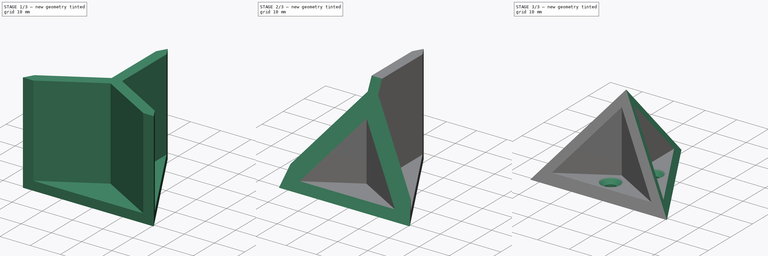
[diagram: build sequence overview — one tinted view per stage of 3, left to right]
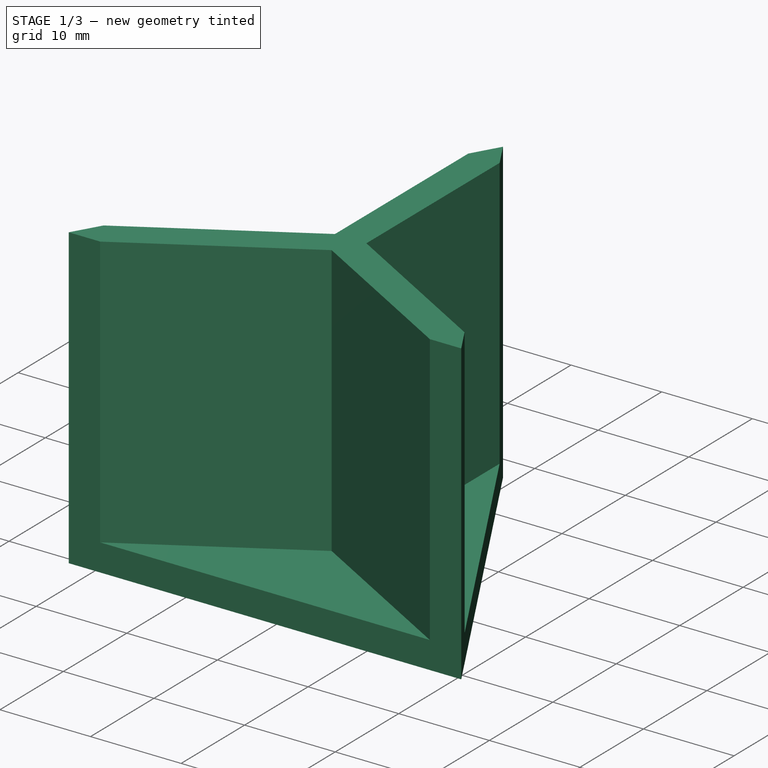
[diagram: stage 1 of 3 — iso view after this stage's code; geometry added in this stage tinted green]
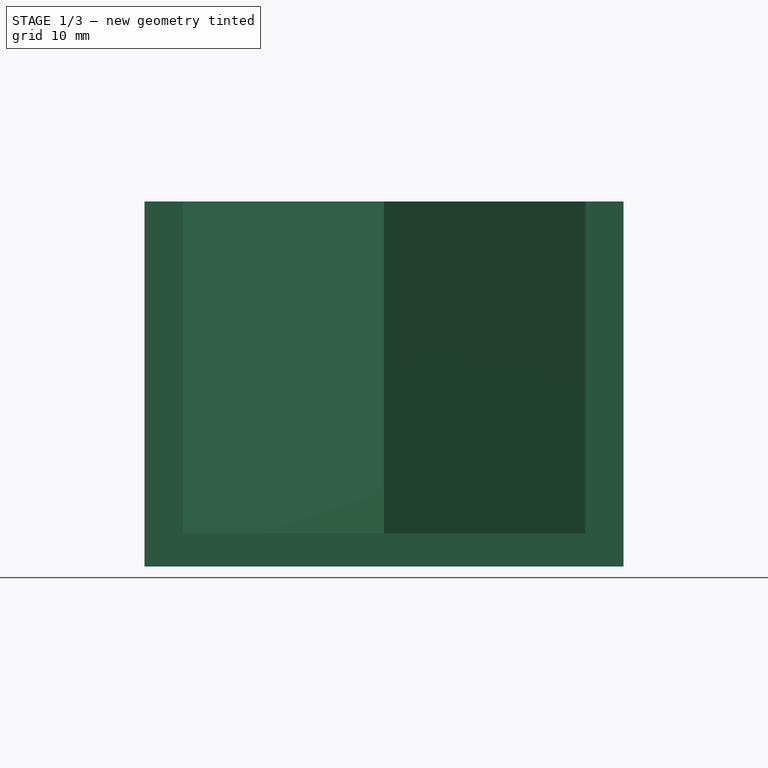
[diagram: stage 1 of 3 — front view after this stage's code; geometry added in this stage tinted green]
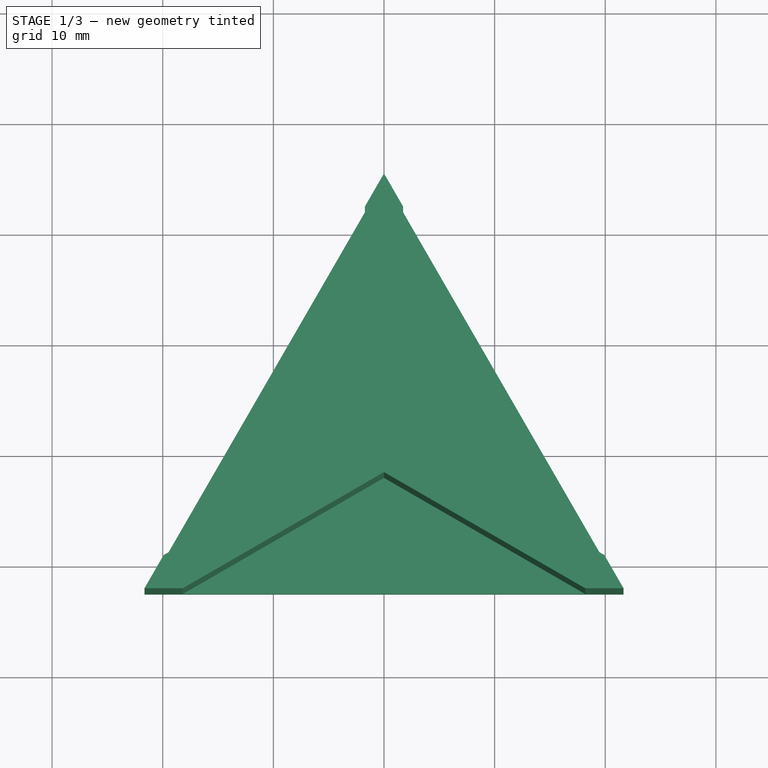
[diagram: stage 1 of 3 — top view after this stage's code; geometry added in this stage tinted green]
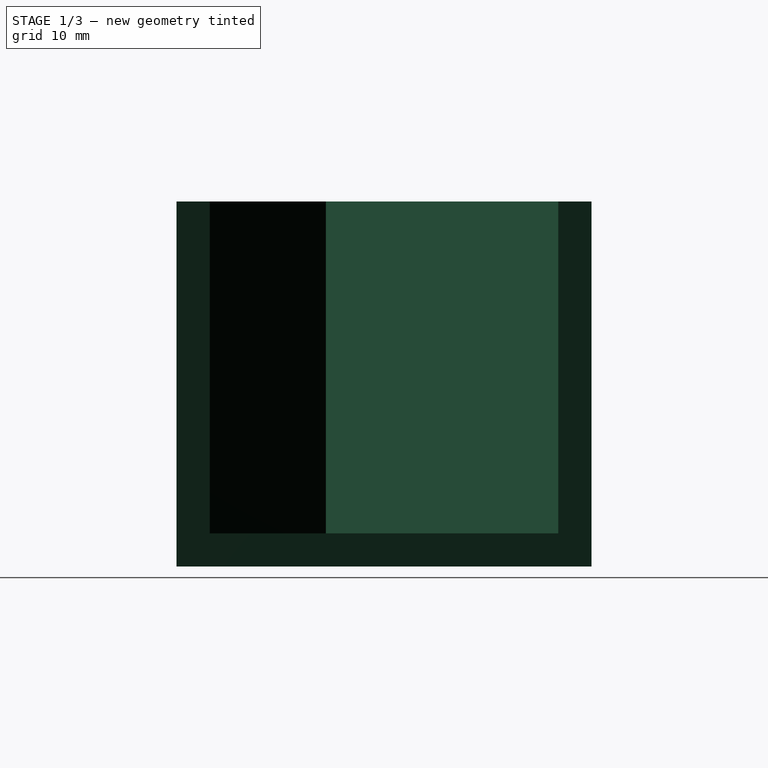
[diagram: stage 1 of 3 — right view after this stage's code; geometry added in this stage tinted green]
FCSTD DOCUMENT  (FreeCAD 0.20R25065 (Git))
Label: SupportCone
License: All rights reserved
LicenseURL: http://en.wikipedia.org/wiki/All_rights_reserved
objects: Sketcher::SketchObject×4, PartDesign::Pad×2, PartDesign::Pocket×1, PartDesign::PolarPattern×1, PartDesign::Hole×1, PartDesign::Body×1
note: 14 computed .brp shape members not serialized (recipe doc carries the construction recipe); baked Part::Feature solids carry a one-line shape summary decoded from their .brp

FEATURE [Sketcher::SketchObject] Sketch
  FullyConstrained = true
  MapMode = 5
  Support = -> [XY_Plane]
  sketch-geometry (4):
    g0: LineSegment StartX=0 StartY=25 StartZ=0 EndX=21.6506 EndY=-12.5 EndZ=0
    g1: LineSegment StartX=0 StartY=25 StartZ=0 EndX=-21.6506 EndY=-12.5 EndZ=0
    g2: LineSegment StartX=-21.6506 StartY=-12.5 StartZ=0 EndX=21.6506 EndY=-12.5 EndZ=0
    g3: Circle CenterX=0 CenterY=0 CenterZ=0 NormalX=0 NormalY=0 NormalZ=1 AngleXU=0 Radius=25
  constraints (11):
    c: PointOnObject(g0,g-2)
    c: Coincident(g1,g0)
    c: Coincident(g2,g1)
    c: Coincident(g2,g0)
    c: Horizontal(g2)
    c: Coincident(g3,g-1)
    c: PointOnObject(g0,g3)
    c: PointOnObject(g0,g3)
    c: PointOnObject(g1,g3)
    c: Equal(g0,g2)
    c: Diameter(g3) = 50
FEATURE [PartDesign::Pad] Pad  label="Base"
  Direction = (0,0,1)
  Length = 3
  Length2 = 100
  Profile = -> Sketch
  Type = 0
FEATURE [Sketcher::SketchObject] Sketch001
  ExternalGeometry = -> [Pad]
  FullyConstrained = true
  MapMode = 5
  Placement = pos=(0,0,3) rot=(0,0,1;0rad)
  Support = -> [Pad]
  sketch-geometry (13):
    g0: LineSegment StartX=-18.1865 StartY=-12.5 StartZ=0 EndX=0 EndY=-2 EndZ=0
    g1: LineSegment StartX=0 StartY=-2 StartZ=0 EndX=18.1865 EndY=-12.5 EndZ=0
    g2: LineSegment StartX=-19.9186 StartY=-9.5 StartZ=0 EndX=-1.73205 EndY=1 EndZ=0
    g3: LineSegment StartX=-1.73205 StartY=1 StartZ=0 EndX=-1.73205 EndY=22 EndZ=0
    g4: LineSegment StartX=1.73205 StartY=22 StartZ=0 EndX=1.73205 EndY=1 EndZ=0
    g5: LineSegment StartX=1.73205 StartY=1 StartZ=0 EndX=19.9186 EndY=-9.5 EndZ=0
    g6: LineSegment StartX=1.73205 StartY=22 StartZ=0 EndX=-1.1e-15 EndY=25 EndZ=0
    g7: LineSegment StartX=-1.73205 StartY=22 StartZ=0 EndX=-1.1e-15 EndY=25 EndZ=0
    g8: LineSegment StartX=-19.9186 StartY=-9.5 StartZ=0 EndX=-21.6506 EndY=-12.5 EndZ=0
    g9: LineSegment StartX=-21.6506 StartY=-12.5 StartZ=0 EndX=-18.1865 EndY=-12.5 EndZ=0
    g10: LineSegment StartX=18.1865 StartY=-12.5 StartZ=0 EndX=21.6506 EndY=-12.5 EndZ=0
    g11: LineSegment StartX=21.6506 StartY=-12.5 StartZ=0 EndX=19.9186 EndY=-9.5 EndZ=0
    g12: Circle CenterX=0 CenterY=0 CenterZ=0 NormalX=0 NormalY=0 NormalZ=1 AngleXU=0 Radius=2
  constraints (34):
    c: PointOnObject(g0,g-5)
    c: PointOnObject(g0,g-2)
    c: Coincident(g1,g0)
    c: PointOnObject(g1,g-5)
    c: PointOnObject(g2,g-4)
    c: Coincident(g3,g2)
    c: PointOnObject(g3,g-4)
    c: PointOnObject(g4,g-3)
    c: Vertical(g4)
    c: Coincident(g5,g4)
    c: PointOnObject(g5,g-3)
    c: Coincident(g6,g4)
    c: Coincident(g6,g-4)
    c: Coincident(g7,g3)
    c: Coincident(g7,g6)
    c: Coincident(g8,g2)
    c: Coincident(g8,g-5)
    c: Coincident(g9,g8)
    c: Coincident(g9,g0)
    c: Coincident(g10,g1)
    c: Coincident(g10,g-5)
    c: Coincident(g11,g10)
    c: Coincident(g11,g5)
    c: Coincident(g12,g-1)
    c: PointOnObject(g0,g12)
    c: PointOnObject(g4,g12)
    c: Parallel(g1,g5)
    c: Equal(g0,g2)
    c: Equal(g4,g3)
    c: Symmetric(g4,g2,g-2)
    c: Diameter(g12) = 4
    c: Parallel(g0,g2)
    c: Equal(g11,g10)
    c: Equal(g9,g8)
FEATURE [PartDesign::Pad] Pad001  label="Renfort"
  BaseFeature = -> Pad
  Direction = (0,0,1)
  Length = 30
  Length2 = 100
  Profile = -> Sketch001
  Type = 0
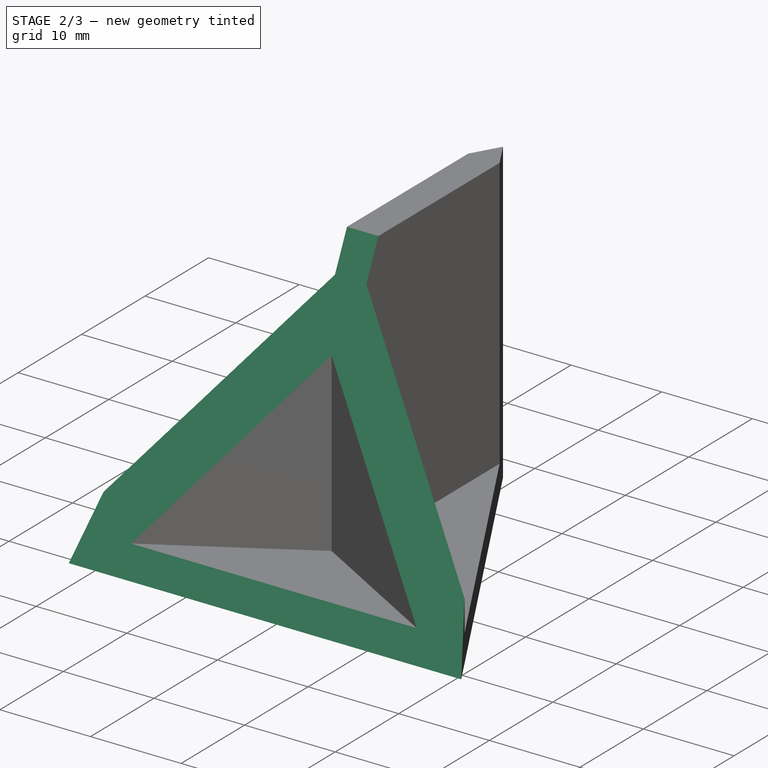
[diagram: stage 2 of 3 — iso view after this stage's code; geometry added in this stage tinted green]
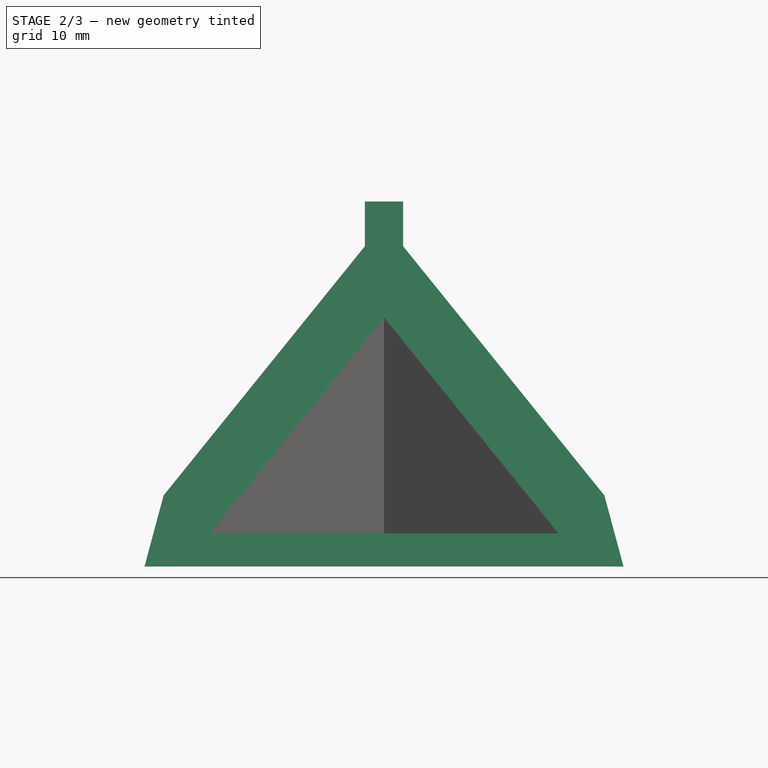
[diagram: stage 2 of 3 — front view after this stage's code; geometry added in this stage tinted green]
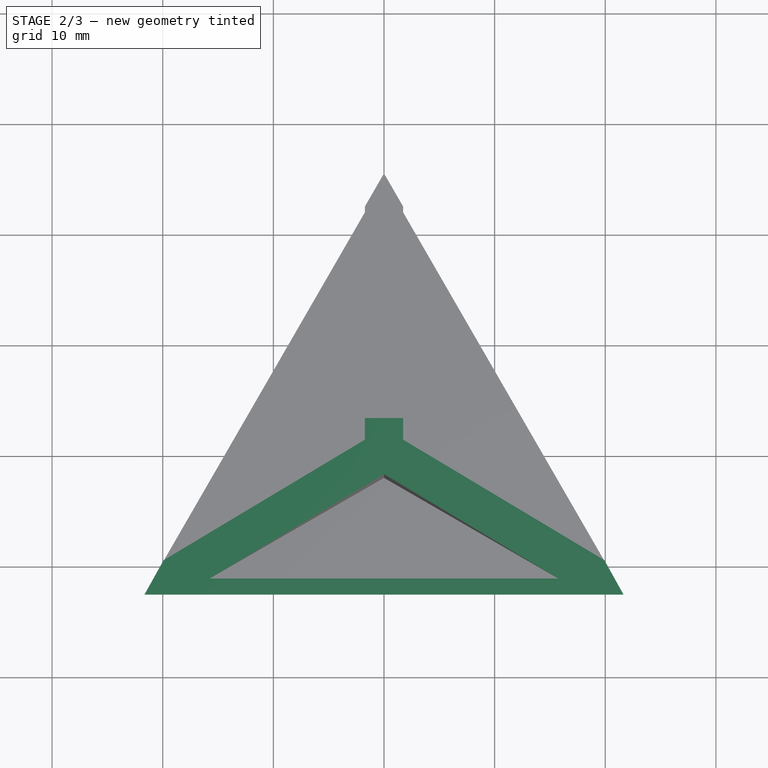
[diagram: stage 2 of 3 — top view after this stage's code; geometry added in this stage tinted green]
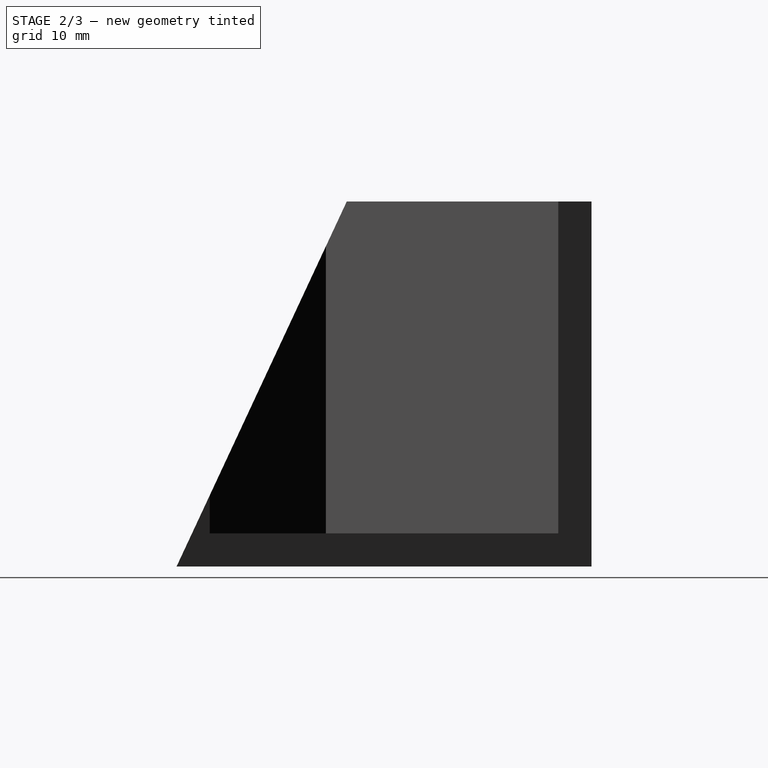
[diagram: stage 2 of 3 — right view after this stage's code; geometry added in this stage tinted green]
FEATURE [Sketcher::SketchObject] Sketch002
  ExternalGeometry = -> [Pad001]
  FullyConstrained = false
  MapMode = 5
  Placement = pos=(0,0,0) rot=(0.57735,0.57735,0.57735;2.0944rad)
  Support = -> [YZ_Plane]
  sketch-geometry (3):
    g0: LineSegment StartX=-12.5 StartY=0 StartZ=0 EndX=-12.5 EndY=45.8155 EndZ=0
    g1: LineSegment StartX=-12.5 StartY=45.8155 StartZ=0 EndX=8.86414 EndY=45.8155 EndZ=0
    g2: LineSegment StartX=8.86414 StartY=45.8155 StartZ=0 EndX=-12.5 EndY=0 EndZ=0
  constraints (7):
    c: Coincident(g0,g-3)
    c: Vertical(g0)
    c: Coincident(g1,g0)
    c: Horizontal(g1)
    c: Coincident(g2,g1)
    c: Coincident(g2,g0)
    c: Angle(g2,g0) = 0.436332
FEATURE [PartDesign::Pocket] Pocket  label="Face inclinée"
  BaseFeature = -> Pad001
  Length = 5
  Length2 = 100
  Midplane = true
  Profile = -> Sketch002
  Type = 1
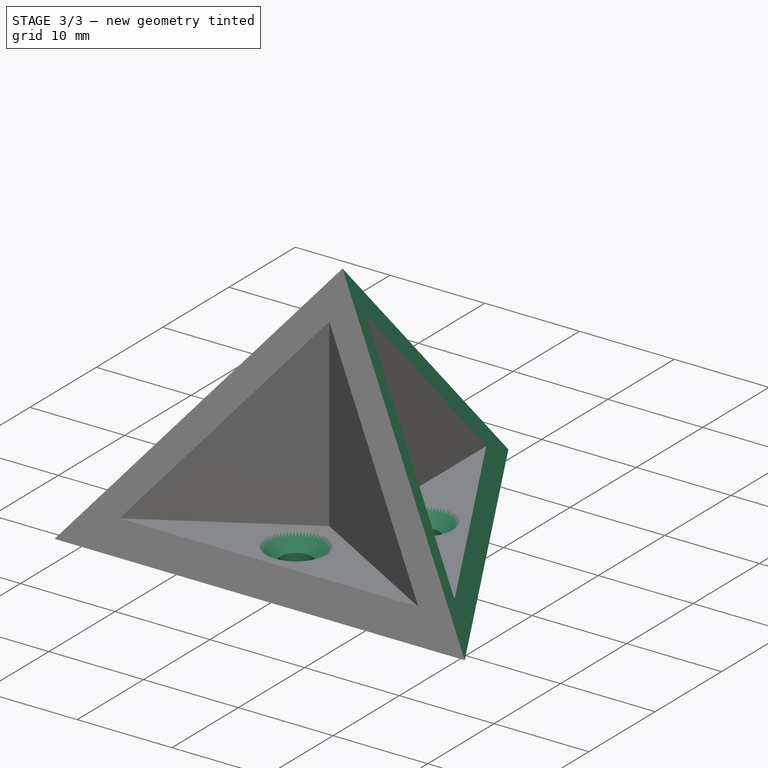
[diagram: stage 3 of 3 — iso view after this stage's code; geometry added in this stage tinted green]
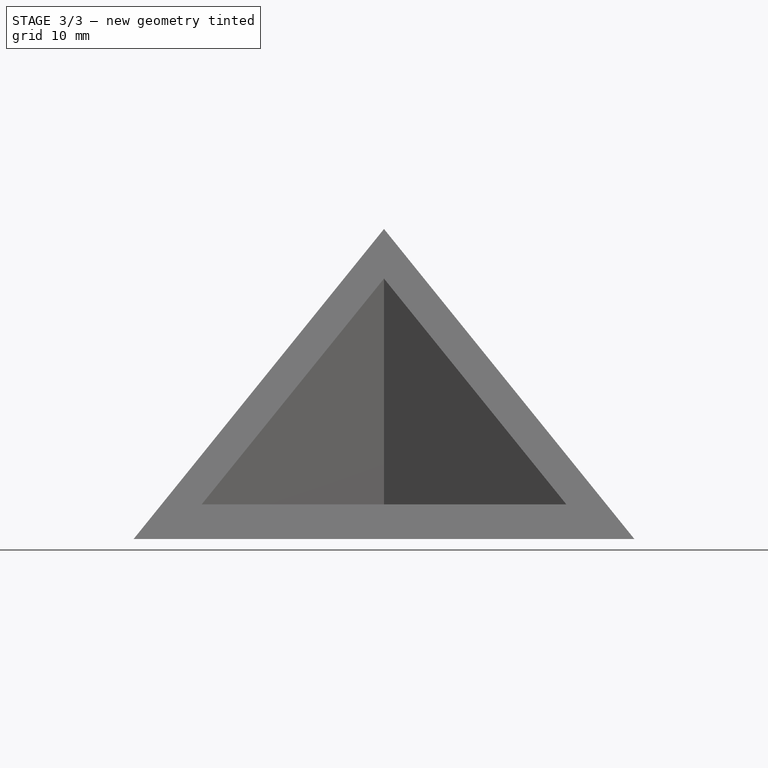
[diagram: stage 3 of 3 — front view after this stage's code; geometry added in this stage tinted green]
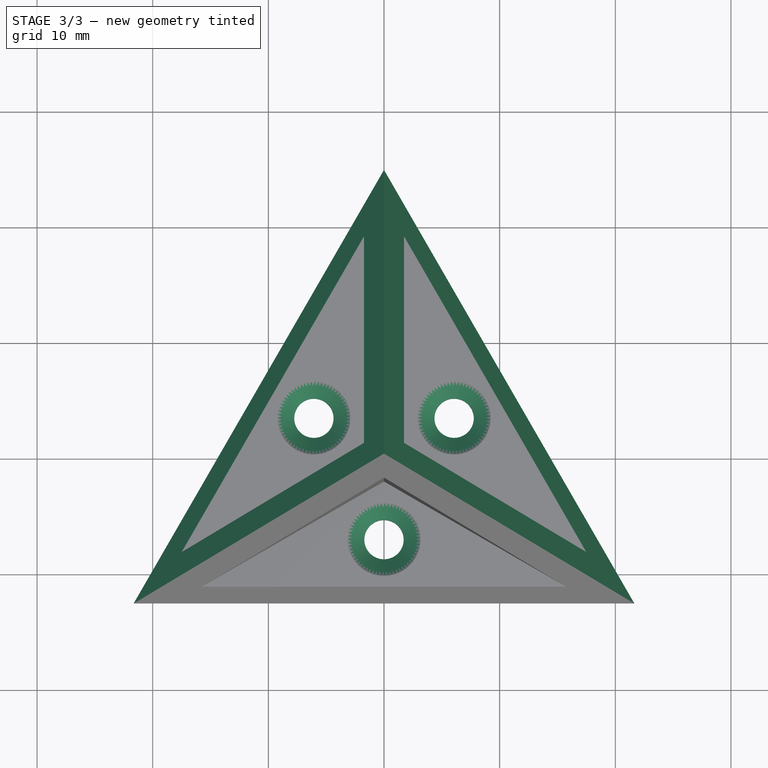
[diagram: stage 3 of 3 — top view after this stage's code; geometry added in this stage tinted green]
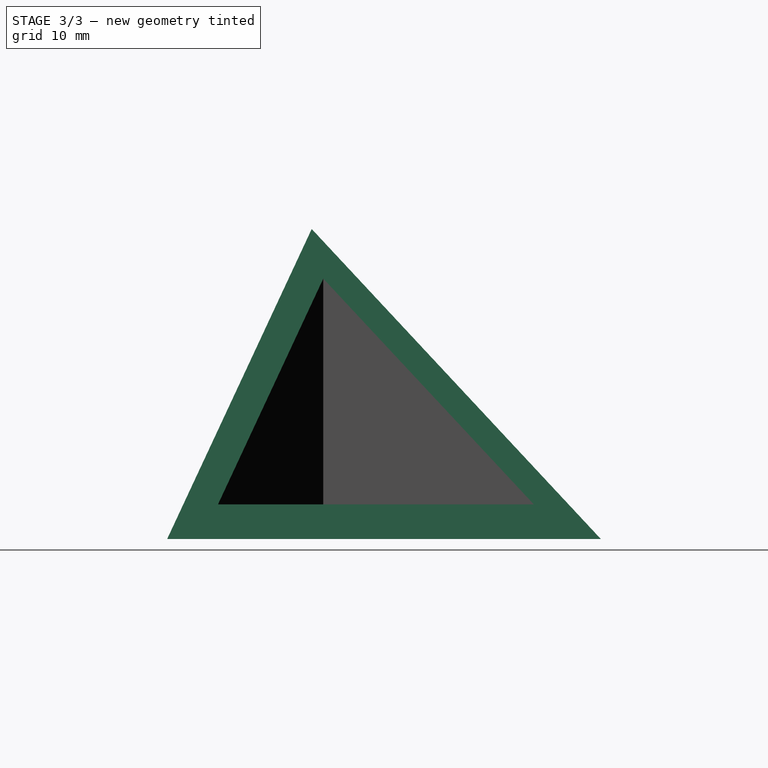
[diagram: stage 3 of 3 — right view after this stage's code; geometry added in this stage tinted green]
FEATURE [PartDesign::PolarPattern] PolarPattern
  Angle = 360
  Axis = -> Z_Axis
  BaseFeature = -> Pocket
  Occurrences = 3
  Originals = -> [Pocket]
  Overlap = 0
FEATURE [Sketcher::SketchObject] Sketch003
  FullyConstrained = false
  MapMode = 5
  Placement = pos=(0,0,3) rot=(0,0,1;0rad)
  Support = -> [PolarPattern]
  sketch-geometry (7):
    g0: Circle CenterX=0 CenterY=0 CenterZ=0 NormalX=0 NormalY=0 NormalZ=1 AngleXU=0 Radius=7
    g1: LineSegment StartX=0 StartY=0 StartZ=0 EndX=-6.06218 EndY=3.5 EndZ=0
    g2: LineSegment StartX=0 StartY=0 StartZ=0 EndX=6.06218 EndY=3.5 EndZ=0
    g3: LineSegment StartX=0 StartY=-7 StartZ=0 EndX=0 EndY=0 EndZ=0
    g4: Circle CenterX=6.06218 CenterY=3.5 CenterZ=0 NormalX=0 NormalY=0 NormalZ=1 AngleXU=0 Radius=1.32234
    g5: Circle CenterX=0 CenterY=-7 CenterZ=0 NormalX=0 NormalY=0 NormalZ=1 AngleXU=0 Radius=1.51644
    g6: Circle CenterX=-6.06218 CenterY=3.5 CenterZ=0 NormalX=0 NormalY=0 NormalZ=1 AngleXU=0 Radius=1.51132
  constraints (13):
    c: Coincident(g0,g-1)
    c: Coincident(g1,g-1)
    c: PointOnObject(g1,g0)
    c: Coincident(g2,g1)
    c: Symmetric(g2,g1,g-2)
    c: PointOnObject(g3,g0)
    c: Coincident(g3,g-1)
    c: Vertical(g3)
    c: Coincident(g4,g2)
    c: Coincident(g5,g3)
    c: Diameter(g0) = 14
    c: Coincident(g6,g1)
    c: Angle(g2,g1) = 2.0944
FEATURE [PartDesign::Hole] Hole
  BaseFeature = -> PolarPattern
  CustomThreadClearance = 0
  Depth = 25
  DepthType = 0
  Diameter = 3.4
  DrillForDepth = false
  DrillPoint = 1
  DrillPointAngle = 118
  HoleCutCountersinkAngle = 90
  HoleCutCustomValues = false
  HoleCutDepth = 5.2
  HoleCutDiameter = 6.3
  HoleCutType = 13
  ModelThread = false
  Profile = -> Sketch003
  Tapered = false
  TaperedAngle = 90
  ThreadClass = 0
  ThreadDepth = 25
  ThreadDepthType = 0
  ThreadDirection = 0
  ThreadFit = 0
  ThreadSize = 9
  ThreadType = 1
  Threaded = false
  UseCustomThreadClearance = false
FEATURE [PartDesign::Body] Body  label="SupportCone"
  Group = -> [Sketch,Pad,Sketch001,Pad001,Sketch002,Pocket,PolarPattern,Sketch003,Hole]
  Origin = -> Origin
  Tip = -> Hole
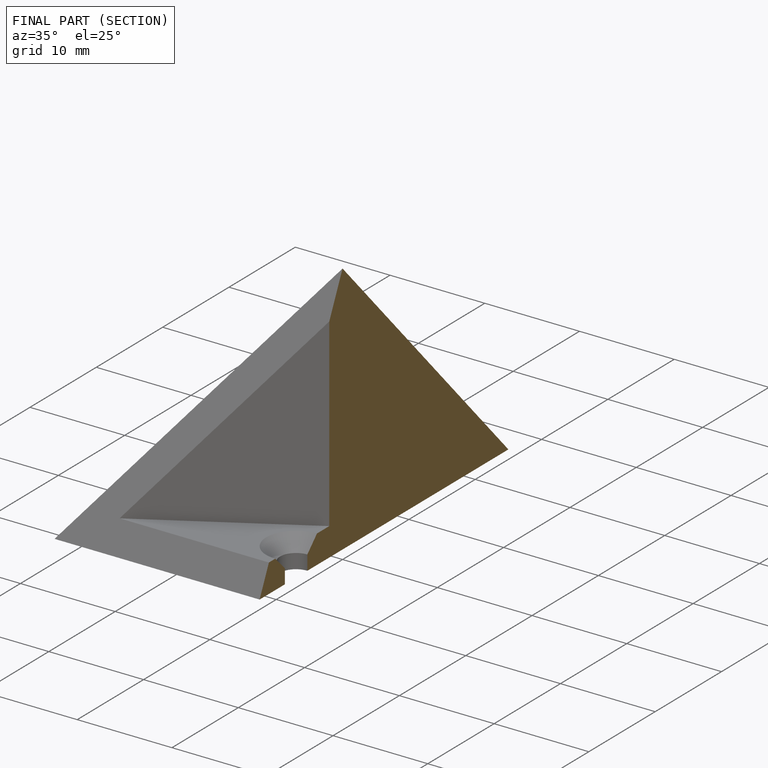
[diagram: finished part — half-section view (interior)]
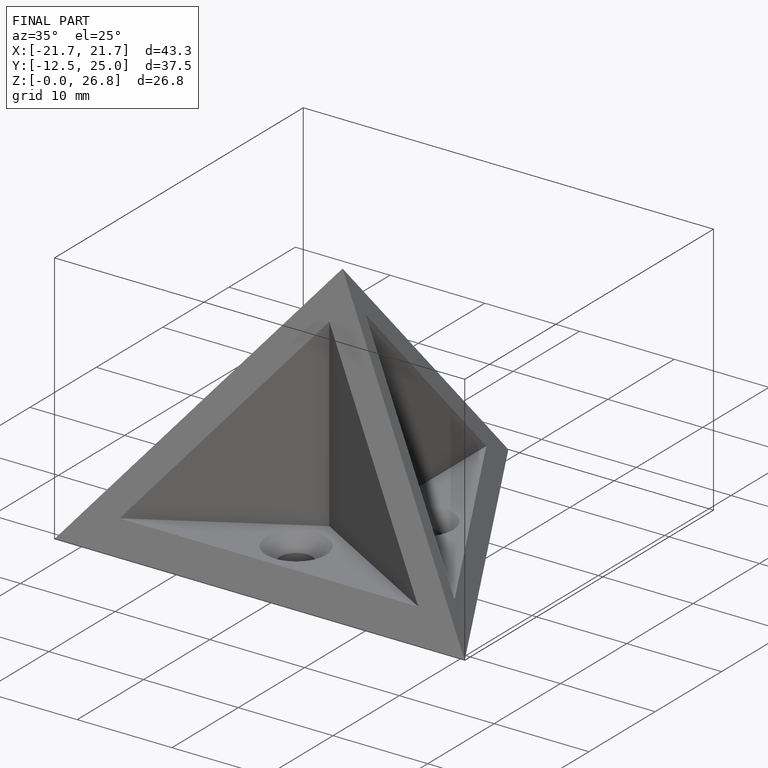
[diagram: finished part — iso view with bounding-box wireframe]
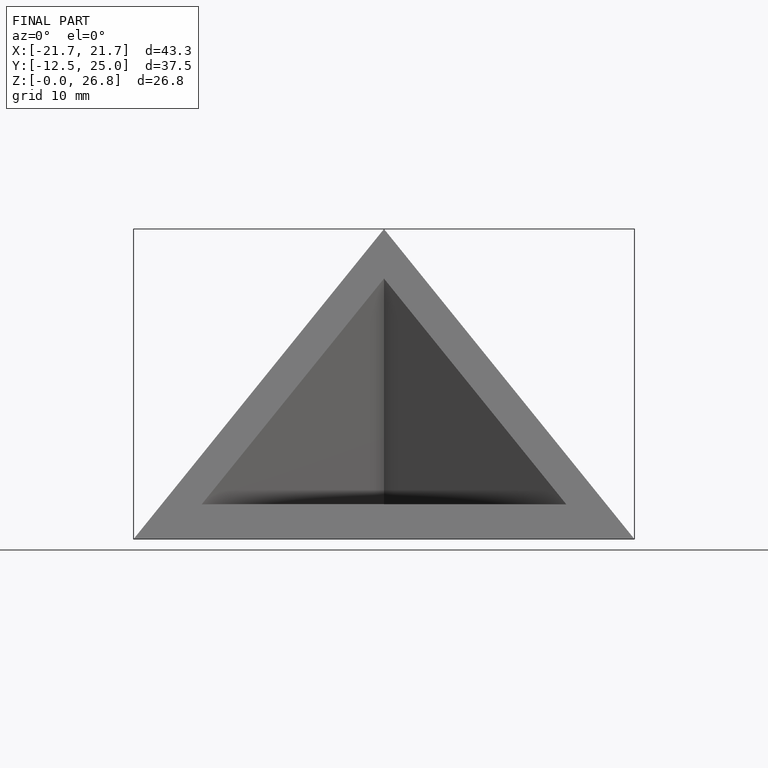
[diagram: finished part — front view with bounding-box wireframe]
